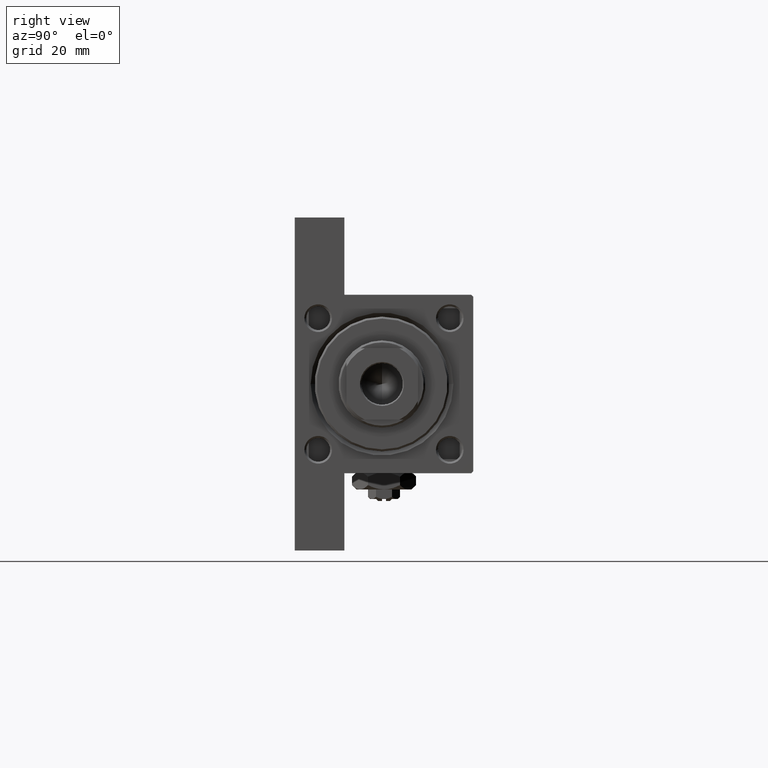
[diagram: clean part render]
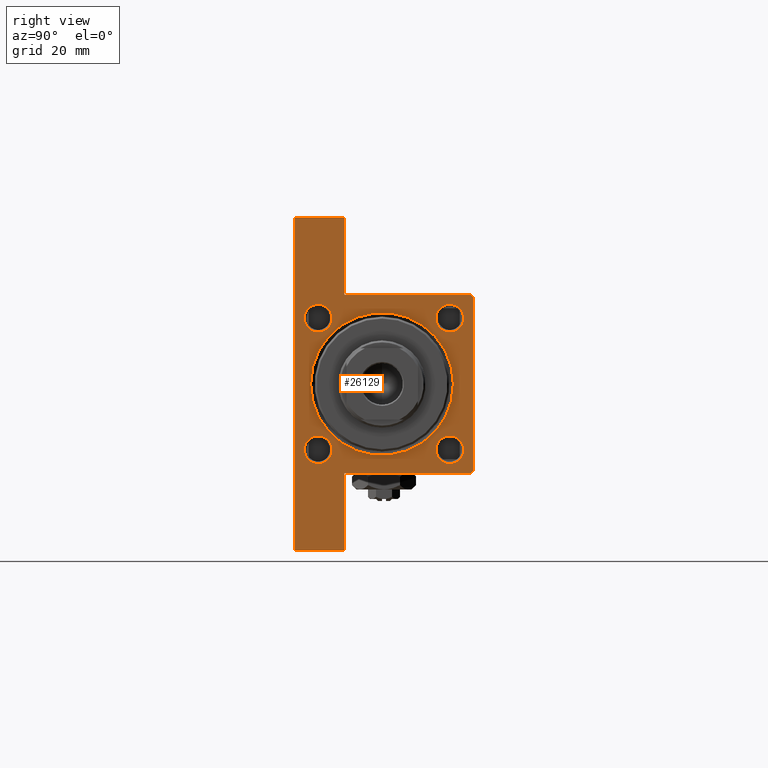
[diagram: same view with one face highlighted and labeled with its STEP entity id]
A machine part, right view. The second image highlights one B-rep face of the part: STEP entity #26129.
In plain terms, the highlighted planar face has unit normal (-1, 0, -0).
Its self-contained STEP definition (entity closure, byte-faithful):
#51 = DIRECTION ( 'NONE',  ( 0.000000000000000000, 0.000000000000000000, 1.000000000000000000 ) ) ;
#299 = DIRECTION ( 'NONE',  ( 0.000000000000000000, 0.000000000000000000, 1.000000000000000000 ) ) ;
#582 = AXIS2_PLACEMENT_3D ( 'NONE', #31737, #12768, #43459 ) ;
#845 = CARTESIAN_POINT ( 'NONE',  ( 123.0000000000000142, -22.49999999999999645, 21.99999999999997868 ) ) ;
#1054 = CARTESIAN_POINT ( 'NONE',  ( 123.0000000000000000, 41.99999999999999289, -9.999999999999998224 ) ) ;
#1139 = CARTESIAN_POINT ( 'NONE',  ( 123.0000000000000142, 16.59999999999999787, -13.10000000000000142 ) ) ;
#1460 = EDGE_CURVE ( 'NONE', #33537, #24052, #48991, .T. ) ;
#2680 = CARTESIAN_POINT ( 'NONE',  ( 123.0000000000000000, 41.99999999999999289, -9.999999999999998224 ) ) ;
#2744 = ORIENTED_EDGE ( 'NONE', *, *, #4875, .F. ) ;
#3194 = LINE ( 'NONE', #44883, #20197 ) ;
#3295 = CARTESIAN_POINT ( 'NONE',  ( 123.0000000000000142, -16.59999999999999787, 16.59999999999999787 ) ) ;
#3371 = EDGE_LOOP ( 'NONE', ( #48506, #31058 ) ) ;
#3391 = VERTEX_POINT ( 'NONE', #27804 ) ;
#3571 = AXIS2_PLACEMENT_3D ( 'NONE', #33499, #40527, #10530 ) ;
#4374 = VERTEX_POINT ( 'NONE', #27519 ) ;
#4386 = VERTEX_POINT ( 'NONE', #23792 ) ;
#4396 = EDGE_CURVE ( 'NONE', #27328, #4386, #35280, .T. ) ;
#4573 = AXIS2_PLACEMENT_3D ( 'NONE', #27310, #26315, #7598 ) ;
#4786 = FACE_BOUND ( 'NONE', #39831, .T. ) ;
#4875 = EDGE_CURVE ( 'NONE', #17831, #44818, #18382, .T. ) ;
#5272 = EDGE_CURVE ( 'NONE', #17831, #11441, #29237, .T. ) ;
#5712 = CARTESIAN_POINT ( 'NONE',  ( 123.0000000000000142, 16.59999999999999787, -20.10000000000000853 ) ) ;
#6138 = CIRCLE ( 'NONE', #14118, 3.500000000000003109 ) ;
#6441 = LINE ( 'NONE', #2680, #28954 ) ;
#6445 = AXIS2_PLACEMENT_3D ( 'NONE', #35876, #16657, #32104 ) ;
#7030 = VECTOR ( 'NONE', #28027, 1000.000000000000000 ) ;
#7256 = DIRECTION ( 'NONE',  ( 0.000000000000000000, 0.000000000000000000, 1.000000000000000000 ) ) ;
#7350 = CARTESIAN_POINT ( 'NONE',  ( 123.0000000000000142, -16.60000000000000497, -16.60000000000000497 ) ) ;
#7598 = DIRECTION ( 'NONE',  ( 0.000000000000000000, 0.000000000000000000, 1.000000000000000000 ) ) ;
#7898 = VERTEX_POINT ( 'NONE', #16230 ) ;
#8062 = CIRCLE ( 'NONE', #25571, 3.500000000000003109 ) ;
#8917 = VERTEX_POINT ( 'NONE', #5712 ) ;
#8961 = ORIENTED_EDGE ( 'NONE', *, *, #33962, .T. ) ;
#9130 = EDGE_CURVE ( 'NONE', #7898, #43566, #39631, .T. ) ;
#9170 = LINE ( 'NONE', #28644, #43238 ) ;
#9229 = ORIENTED_EDGE ( 'NONE', *, *, #41264, .F. ) ;
#9355 = CARTESIAN_POINT ( 'NONE',  ( 123.0000000000000000, 41.99999999999999289, -9.999999999999998224 ) ) ;
#9762 = DIRECTION ( 'NONE',  ( 0.000000000000000000, 0.000000000000000000, -1.000000000000000000 ) ) ;
#10007 = DIRECTION ( 'NONE',  ( -0.000000000000000000, -1.000000000000000000, -0.000000000000000000 ) ) ;
#10085 = CIRCLE ( 'NONE', #20468, 3.500000000000003109 ) ;
#10354 = DIRECTION ( 'NONE',  ( 0.000000000000000000, 0.000000000000000000, 1.000000000000000000 ) ) ;
#10530 = DIRECTION ( 'NONE',  ( 0.000000000000000000, 0.000000000000000000, 1.000000000000000000 ) ) ;
#10681 = DIRECTION ( 'NONE',  ( 0.000000000000000000, 0.000000000000000000, -1.000000000000000000 ) ) ;
#11286 = ORIENTED_EDGE ( 'NONE', *, *, #48066, .T. ) ;
#11441 = VERTEX_POINT ( 'NONE', #20230 ) ;
#12032 = FACE_OUTER_BOUND ( 'NONE', #49415, .T. ) ;
#12701 = CARTESIAN_POINT ( 'NONE',  ( 122.9999999999999858, -42.00000000000000711, -22.50000000000000000 ) ) ;
#12768 = DIRECTION ( 'NONE',  ( -1.000000000000000000, 0.000000000000000000, -0.000000000000000000 ) ) ;
#13289 = LINE ( 'NONE', #17531, #7030 ) ;
#13307 = CARTESIAN_POINT ( 'NONE',  ( 123.0000000000000142, -16.60000000000000497, -20.10000000000000853 ) ) ;
#13418 = DIRECTION ( 'NONE',  ( 0.000000000000000000, -1.000000000000000000, -7.709882115452476934E-17 ) ) ;
#14118 = AXIS2_PLACEMENT_3D ( 'NONE', #37714, #34228, #7256 ) ;
#14630 = CARTESIAN_POINT ( 'NONE',  ( 123.0000000000000142, 22.50000000000000355, 22.50000000000000355 ) ) ;
#15108 = DIRECTION ( 'NONE',  ( 0.000000000000000000, 0.000000000000000000, 1.000000000000000000 ) ) ;
#15257 = ORIENTED_EDGE ( 'NONE', *, *, #23790, .T. ) ;
#15560 = DIRECTION ( 'NONE',  ( -1.000000000000000000, 0.000000000000000000, -0.000000000000000000 ) ) ;
#15821 = DIRECTION ( 'NONE',  ( 0.000000000000000000, 0.000000000000000000, -1.000000000000000000 ) ) ;
#15823 = VERTEX_POINT ( 'NONE', #19355 ) ;
#15868 = CARTESIAN_POINT ( 'NONE',  ( 123.0000000000000142, -16.60000000000000497, -13.10000000000000142 ) ) ;
#15912 = DIRECTION ( 'NONE',  ( -1.000000000000000000, 0.000000000000000000, -0.000000000000000000 ) ) ;
#16230 = CARTESIAN_POINT ( 'NONE',  ( 123.0000000000000142, -21.99999999999996803, 22.49999999999999289 ) ) ;
#16246 = EDGE_CURVE ( 'NONE', #27328, #44818, #6441, .T. ) ;
#16417 = VECTOR ( 'NONE', #29847, 1000.000000000000000 ) ;
#16529 = AXIS2_PLACEMENT_3D ( 'NONE', #38379, #15912, #31129 ) ;
#16657 = DIRECTION ( 'NONE',  ( -1.000000000000000000, 0.000000000000000000, -0.000000000000000000 ) ) ;
#16697 = EDGE_LOOP ( 'NONE', ( #44002, #11286 ) ) ;
#16808 = DIRECTION ( 'NONE',  ( 0.000000000000000000, -0.7071067811865474617, 0.7071067811865474617 ) ) ;
#16925 = EDGE_CURVE ( 'NONE', #43566, #4374, #3194, .T. ) ;
#17119 = AXIS2_PLACEMENT_3D ( 'NONE', #48541, #17845, #10354 ) ;
#17272 = AXIS2_PLACEMENT_3D ( 'NONE', #42040, #15560, #299 ) ;
#17531 = CARTESIAN_POINT ( 'NONE',  ( 123.0000000000000142, 22.50000000000000355, 22.50000000000000355 ) ) ;
#17831 = VERTEX_POINT ( 'NONE', #20285 ) ;
#17845 = DIRECTION ( 'NONE',  ( -1.000000000000000000, 0.000000000000000000, -0.000000000000000000 ) ) ;
#18382 = LINE ( 'NONE', #14630, #16417 ) ;
#19355 = CARTESIAN_POINT ( 'NONE',  ( 123.0000000000000142, 0.000000000000000000, -18.50000000000000000 ) ) ;
#20197 = VECTOR ( 'NONE', #10681, 1000.000000000000000 ) ;
#20230 = CARTESIAN_POINT ( 'NONE',  ( 123.0000000000000142, 21.99999999999998934, 22.50000000000000355 ) ) ;
#20285 = CARTESIAN_POINT ( 'NONE',  ( 123.0000000000000142, 22.50000000000000355, 21.99999999999998934 ) ) ;
#20468 = AXIS2_PLACEMENT_3D ( 'NONE', #24229, #47191, #43708 ) ;
#20508 = CIRCLE ( 'NONE', #4573, 18.00000000000000355 ) ;
#20743 = FACE_BOUND ( 'NONE', #45578, .T. ) ;
#20994 = LINE ( 'NONE', #36234, #31025 ) ;
#21033 = CARTESIAN_POINT ( 'NONE',  ( 122.9999999999999858, 22.49999999999999289, -9.999999999999998224 ) ) ;
#21100 = EDGE_CURVE ( 'NONE', #8917, #42364, #37074, .T. ) ;
#22571 = DIRECTION ( 'NONE',  ( -1.000000000000000000, 0.000000000000000000, -0.000000000000000000 ) ) ;
#22806 = ORIENTED_EDGE ( 'NONE', *, *, #32113, .T. ) ;
#23053 = ORIENTED_EDGE ( 'NONE', *, *, #4396, .F. ) ;
#23545 = CARTESIAN_POINT ( 'NONE',  ( 122.9999999999999858, -42.00000000000000711, -9.999999999999998224 ) ) ;
#23759 = FACE_BOUND ( 'NONE', #31269, .T. ) ;
#23790 = EDGE_CURVE ( 'NONE', #40246, #15823, #33988, .T. ) ;
#23792 = CARTESIAN_POINT ( 'NONE',  ( 123.0000000000000000, 41.99999999999999289, -22.50000000000000000 ) ) ;
#24052 = VERTEX_POINT ( 'NONE', #44228 ) ;
#24229 = CARTESIAN_POINT ( 'NONE',  ( 123.0000000000000142, -16.60000000000000497, -16.60000000000000497 ) ) ;
#25193 = VECTOR ( 'NONE', #15821, 1000.000000000000000 ) ;
#25262 = CIRCLE ( 'NONE', #16529, 3.500000000000003109 ) ;
#25417 = DIRECTION ( 'NONE',  ( -7.116814260417667527E-16, -1.000000000000000000, 0.000000000000000000 ) ) ;
#25436 = VERTEX_POINT ( 'NONE', #12701 ) ;
#25571 = AXIS2_PLACEMENT_3D ( 'NONE', #3295, #29756, #51 ) ;
#25713 = VERTEX_POINT ( 'NONE', #13307 ) ;
#26129 = ADVANCED_FACE ( 'NONE', ( #48967, #4786, #23759, #27745, #20743, #12032 ), #28229, .F. ) ;
#26315 = DIRECTION ( 'NONE',  ( -1.000000000000000000, 0.000000000000000000, -0.000000000000000000 ) ) ;
#27310 = CARTESIAN_POINT ( 'NONE',  ( 123.0000000000000142, 0.000000000000000000, -0.4999999999999967804 ) ) ;
#27328 = VERTEX_POINT ( 'NONE', #9355 ) ;
#27360 = ORIENTED_EDGE ( 'NONE', *, *, #16925, .T. ) ;
#27511 = ORIENTED_EDGE ( 'NONE', *, *, #39852, .T. ) ;
#27519 = CARTESIAN_POINT ( 'NONE',  ( 123.0000000000000142, -22.49999999999999645, -9.999999999999980460 ) ) ;
#27745 = FACE_BOUND ( 'NONE', #16697, .T. ) ;
#27804 = CARTESIAN_POINT ( 'NONE',  ( 123.0000000000000142, -16.59999999999999787, 20.10000000000000142 ) ) ;
#28027 = DIRECTION ( 'NONE',  ( 0.000000000000000000, -1.000000000000000000, -2.312964634635742957E-16 ) ) ;
#28229 = PLANE ( 'NONE',  #582 ) ;
#28379 = CARTESIAN_POINT ( 'NONE',  ( 123.0000000000000142, -22.49999999999999645, 21.99999999999997868 ) ) ;
#28644 = CARTESIAN_POINT ( 'NONE',  ( 123.0000000000000142, 22.50000000000000355, -22.49999999999999645 ) ) ;
#28954 = VECTOR ( 'NONE', #25417, 1000.000000000000000 ) ;
#29193 = ORIENTED_EDGE ( 'NONE', *, *, #34912, .T. ) ;
#29237 = LINE ( 'NONE', #44479, #38014 ) ;
#29438 = VECTOR ( 'NONE', #10007, 1000.000000000000000 ) ;
#29756 = DIRECTION ( 'NONE',  ( -1.000000000000000000, 0.000000000000000000, -0.000000000000000000 ) ) ;
#29847 = DIRECTION ( 'NONE',  ( 0.000000000000000000, 0.000000000000000000, -1.000000000000000000 ) ) ;
#30153 = EDGE_CURVE ( 'NONE', #42166, #3391, #6138, .T. ) ;
#30544 = ORIENTED_EDGE ( 'NONE', *, *, #9130, .T. ) ;
#31025 = VECTOR ( 'NONE', #9762, 1000.000000000000000 ) ;
#31058 = ORIENTED_EDGE ( 'NONE', *, *, #1460, .T. ) ;
#31129 = DIRECTION ( 'NONE',  ( 0.000000000000000000, 0.000000000000000000, 1.000000000000000000 ) ) ;
#31269 = EDGE_LOOP ( 'NONE', ( #47715, #34473 ) ) ;
#31737 = CARTESIAN_POINT ( 'NONE',  ( 123.0000000000000142, 0.000000000000000000, 0.000000000000000000 ) ) ;
#32104 = DIRECTION ( 'NONE',  ( 0.000000000000000000, 0.000000000000000000, 1.000000000000000000 ) ) ;
#32113 = EDGE_CURVE ( 'NONE', #11441, #7898, #13289, .T. ) ;
#33173 = AXIS2_PLACEMENT_3D ( 'NONE', #7350, #22571, #15108 ) ;
#33365 = CARTESIAN_POINT ( 'NONE',  ( 123.0000000000000142, -16.59999999999999787, 13.09999999999999432 ) ) ;
#33499 = CARTESIAN_POINT ( 'NONE',  ( 123.0000000000000142, 16.59999999999999787, -16.60000000000000497 ) ) ;
#33537 = VERTEX_POINT ( 'NONE', #37573 ) ;
#33830 = CARTESIAN_POINT ( 'NONE',  ( 123.0000000000000142, 2.204364238465235822E-15, 17.50000000000000355 ) ) ;
#33962 = EDGE_CURVE ( 'NONE', #41731, #25436, #20994, .T. ) ;
#33963 = LINE ( 'NONE', #44694, #29438 ) ;
#33988 = CIRCLE ( 'NONE', #17272, 18.00000000000000355 ) ;
#34228 = DIRECTION ( 'NONE',  ( -1.000000000000000000, 0.000000000000000000, -0.000000000000000000 ) ) ;
#34473 = ORIENTED_EDGE ( 'NONE', *, *, #45638, .T. ) ;
#34912 = EDGE_CURVE ( 'NONE', #4374, #41731, #33963, .T. ) ;
#35280 = LINE ( 'NONE', #1054, #25193 ) ;
#35876 = CARTESIAN_POINT ( 'NONE',  ( 123.0000000000000142, 16.59999999999999787, 16.60000000000000497 ) ) ;
#36234 = CARTESIAN_POINT ( 'NONE',  ( 122.9999999999999858, -42.00000000000000711, -9.999999999999998224 ) ) ;
#37074 = CIRCLE ( 'NONE', #3571, 3.500000000000003109 ) ;
#37573 = CARTESIAN_POINT ( 'NONE',  ( 123.0000000000000142, 16.59999999999999787, 20.10000000000000853 ) ) ;
#37714 = CARTESIAN_POINT ( 'NONE',  ( 123.0000000000000142, -16.59999999999999787, 16.59999999999999787 ) ) ;
#37723 = ORIENTED_EDGE ( 'NONE', *, *, #30153, .T. ) ;
#38014 = VECTOR ( 'NONE', #16808, 1000.000000000000114 ) ;
#38369 = ORIENTED_EDGE ( 'NONE', *, *, #5272, .T. ) ;
#38379 = CARTESIAN_POINT ( 'NONE',  ( 123.0000000000000142, 16.59999999999999787, -16.60000000000000497 ) ) ;
#38756 = CIRCLE ( 'NONE', #33173, 3.500000000000003109 ) ;
#39233 = ORIENTED_EDGE ( 'NONE', *, *, #48224, .T. ) ;
#39475 = EDGE_CURVE ( 'NONE', #24052, #33537, #47937, .T. ) ;
#39631 = LINE ( 'NONE', #28379, #44331 ) ;
#39831 = EDGE_LOOP ( 'NONE', ( #37723, #27511 ) ) ;
#39852 = EDGE_CURVE ( 'NONE', #3391, #42166, #8062, .T. ) ;
#40246 = VERTEX_POINT ( 'NONE', #33830 ) ;
#40435 = VERTEX_POINT ( 'NONE', #15868 ) ;
#40527 = DIRECTION ( 'NONE',  ( -1.000000000000000000, 0.000000000000000000, -0.000000000000000000 ) ) ;
#41264 = EDGE_CURVE ( 'NONE', #4386, #25436, #9170, .T. ) ;
#41731 = VERTEX_POINT ( 'NONE', #23545 ) ;
#42040 = CARTESIAN_POINT ( 'NONE',  ( 123.0000000000000142, 0.000000000000000000, -0.4999999999999967804 ) ) ;
#42042 = ORIENTED_EDGE ( 'NONE', *, *, #16246, .T. ) ;
#42166 = VERTEX_POINT ( 'NONE', #33365 ) ;
#42364 = VERTEX_POINT ( 'NONE', #1139 ) ;
#43238 = VECTOR ( 'NONE', #13418, 1000.000000000000000 ) ;
#43459 = DIRECTION ( 'NONE',  ( -0.000000000000000000, 0.000000000000000000, 1.000000000000000000 ) ) ;
#43566 = VERTEX_POINT ( 'NONE', #845 ) ;
#43708 = DIRECTION ( 'NONE',  ( 0.000000000000000000, 0.000000000000000000, 1.000000000000000000 ) ) ;
#44002 = ORIENTED_EDGE ( 'NONE', *, *, #21100, .T. ) ;
#44103 = DIRECTION ( 'NONE',  ( -0.000000000000000000, -0.7071067811865474617, -0.7071067811865474617 ) ) ;
#44228 = CARTESIAN_POINT ( 'NONE',  ( 123.0000000000000142, 16.59999999999999787, 13.10000000000000142 ) ) ;
#44331 = VECTOR ( 'NONE', #44103, 1000.000000000000114 ) ;
#44479 = CARTESIAN_POINT ( 'NONE',  ( 123.0000000000000142, 21.99999999999998934, 22.50000000000000355 ) ) ;
#44694 = CARTESIAN_POINT ( 'NONE',  ( 122.9999999999999858, -42.00000000000000711, -9.999999999999998224 ) ) ;
#44818 = VERTEX_POINT ( 'NONE', #21033 ) ;
#44883 = CARTESIAN_POINT ( 'NONE',  ( 123.0000000000000142, -22.49999999999999645, 22.49999999999999289 ) ) ;
#45578 = EDGE_LOOP ( 'NONE', ( #39233, #15257 ) ) ;
#45638 = EDGE_CURVE ( 'NONE', #40435, #25713, #38756, .T. ) ;
#46605 = EDGE_CURVE ( 'NONE', #25713, #40435, #10085, .T. ) ;
#47191 = DIRECTION ( 'NONE',  ( -1.000000000000000000, 0.000000000000000000, -0.000000000000000000 ) ) ;
#47715 = ORIENTED_EDGE ( 'NONE', *, *, #46605, .T. ) ;
#47937 = CIRCLE ( 'NONE', #6445, 3.500000000000003109 ) ;
#48066 = EDGE_CURVE ( 'NONE', #42364, #8917, #25262, .T. ) ;
#48224 = EDGE_CURVE ( 'NONE', #15823, #40246, #20508, .T. ) ;
#48506 = ORIENTED_EDGE ( 'NONE', *, *, #39475, .T. ) ;
#48541 = CARTESIAN_POINT ( 'NONE',  ( 123.0000000000000142, 16.59999999999999787, 16.60000000000000497 ) ) ;
#48967 = FACE_BOUND ( 'NONE', #3371, .T. ) ;
#48991 = CIRCLE ( 'NONE', #17119, 3.500000000000003109 ) ;
#49415 = EDGE_LOOP ( 'NONE', ( #2744, #38369, #22806, #30544, #27360, #29193, #8961, #9229, #23053, #42042 ) ) ;